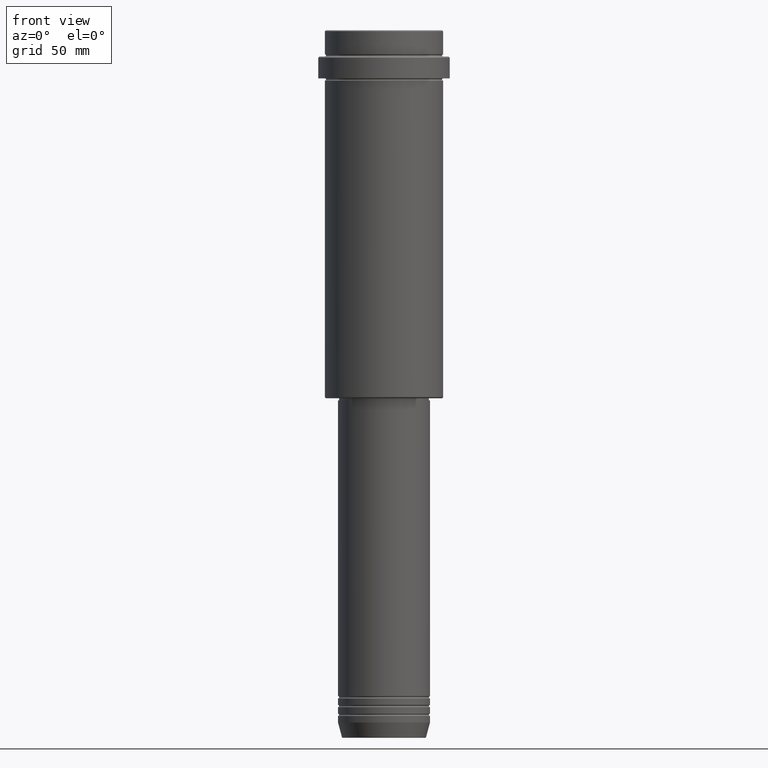
[diagram: clean part render]
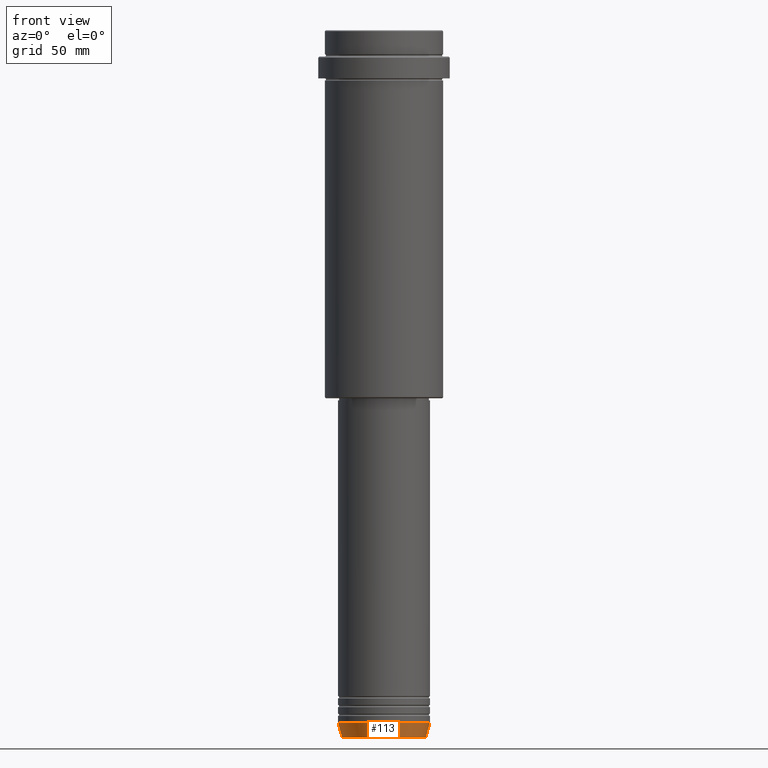
[diagram: same view with one face highlighted and labeled with its STEP entity id]
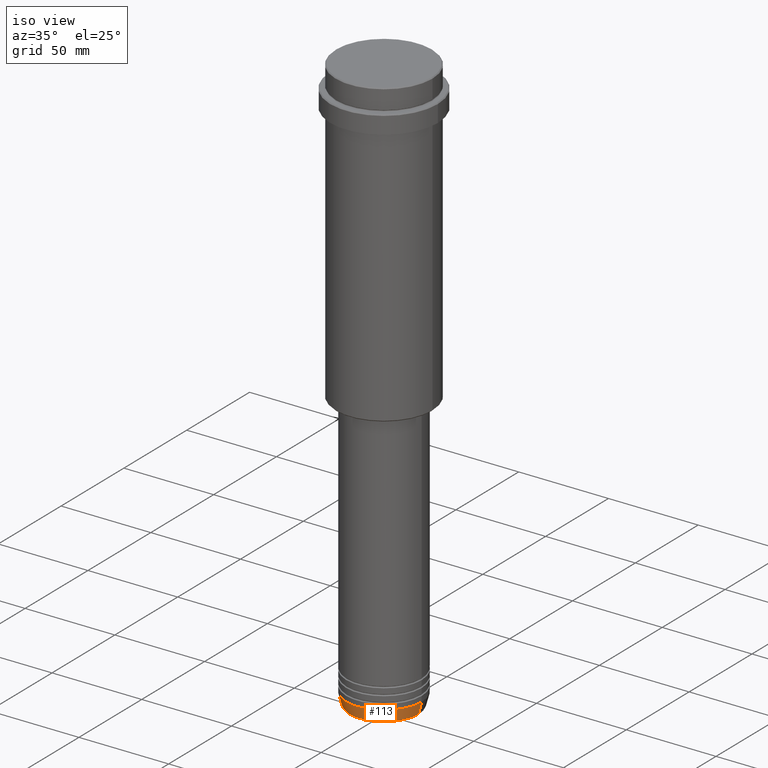
[diagram: same view with one face highlighted and labeled with its STEP entity id]
A machine part, front view. The second image highlights one B-rep face of the part: STEP entity #113.
A second angle (iso view) of the same face is appended — the face is thin or edge-on in the first view.
In plain terms, the highlighted conical surface has half-angle 15 deg.
Its self-contained STEP definition (entity closure, byte-faithful):
#31 = AXIS2_PLACEMENT_3D ( 'NONE', #296, #542, #1410 ) ;
#104 = FACE_OUTER_BOUND ( 'NONE', #1373, .T. ) ;
#113 = ADVANCED_FACE ( 'NONE', ( #104 ), #871, .T. ) ;
#174 = CARTESIAN_POINT ( 'NONE',  ( 0.000000000000000000, 0.000000000000000000, -316.0000000000000000 ) ) ;
#185 = DIRECTION ( 'NONE',  ( 1.000000000000000000, 0.000000000000000000, 0.000000000000000000 ) ) ;
#213 = CIRCLE ( 'NONE', #547, 21.00000000000000000 ) ;
#224 = EDGE_CURVE ( 'NONE', #1009, #486, #1159, .T. ) ;
#286 = ORIENTED_EDGE ( 'NONE', *, *, #224, .F. ) ;
#296 = CARTESIAN_POINT ( 'NONE',  ( 0.000000000000000000, 0.000000000000000000, -316.0000000000000000 ) ) ;
#355 = ORIENTED_EDGE ( 'NONE', *, *, #495, .F. ) ;
#375 = VECTOR ( 'NONE', #758, 1000.000000000000000 ) ;
#400 = LINE ( 'NONE', #1380, #858 ) ;
#434 = CARTESIAN_POINT ( 'NONE',  ( -19.22365507213719127, 2.462988521705001050E-15, -322.6294095225512706 ) ) ;
#480 = ORIENTED_EDGE ( 'NONE', *, *, #1004, .T. ) ;
#486 = VERTEX_POINT ( 'NONE', #1157 ) ;
#495 = EDGE_CURVE ( 'NONE', #486, #1054, #213, .T. ) ;
#533 = CARTESIAN_POINT ( 'NONE',  ( -21.00000000000000000, 2.571758278209441661E-15, -316.0000000000000000 ) ) ;
#537 = CARTESIAN_POINT ( 'NONE',  ( 0.000000000000000000, 0.000000000000000000, -322.6294095225512706 ) ) ;
#542 = DIRECTION ( 'NONE',  ( -0.000000000000000000, -0.000000000000000000, 1.000000000000000000 ) ) ;
#547 = AXIS2_PLACEMENT_3D ( 'NONE', #174, #617, #185 ) ;
#548 = AXIS2_PLACEMENT_3D ( 'NONE', #537, #690, #1342 ) ;
#555 = VERTEX_POINT ( 'NONE', #1007 ) ;
#617 = DIRECTION ( 'NONE',  ( -0.000000000000000000, -0.000000000000000000, 1.000000000000000000 ) ) ;
#690 = DIRECTION ( 'NONE',  ( -0.000000000000000000, -0.000000000000000000, 1.000000000000000000 ) ) ;
#758 = DIRECTION ( 'NONE',  ( -0.2588190451025213501, 3.169619151431772337E-17, 0.9659258262890680902 ) ) ;
#858 = VECTOR ( 'NONE', #967, 1000.000000000000000 ) ;
#871 = CONICAL_SURFACE ( 'NONE', #31, 21.00000000000000000, 0.2617993877991500740 ) ;
#943 = ORIENTED_EDGE ( 'NONE', *, *, #1048, .T. ) ;
#967 = DIRECTION ( 'NONE',  ( 0.2588190451025213501, 0.000000000000000000, 0.9659258262890680902 ) ) ;
#1004 = EDGE_CURVE ( 'NONE', #555, #1054, #400, .T. ) ;
#1007 = CARTESIAN_POINT ( 'NONE',  ( 19.22365507213719127, 0.000000000000000000, -322.6294095225512706 ) ) ;
#1009 = VERTEX_POINT ( 'NONE', #434 ) ;
#1048 = EDGE_CURVE ( 'NONE', #1009, #555, #1187, .T. ) ;
#1054 = VERTEX_POINT ( 'NONE', #1142 ) ;
#1142 = CARTESIAN_POINT ( 'NONE',  ( 21.00000000000000000, 0.000000000000000000, -316.0000000000000000 ) ) ;
#1157 = CARTESIAN_POINT ( 'NONE',  ( -21.00000000000000000, 2.571758278209441661E-15, -316.0000000000000000 ) ) ;
#1159 = LINE ( 'NONE', #533, #375 ) ;
#1187 = CIRCLE ( 'NONE', #548, 19.22365507213719127 ) ;
#1342 = DIRECTION ( 'NONE',  ( 1.000000000000000000, 0.000000000000000000, 0.000000000000000000 ) ) ;
#1373 = EDGE_LOOP ( 'NONE', ( #286, #943, #480, #355 ) ) ;
#1380 = CARTESIAN_POINT ( 'NONE',  ( 21.00000000000000000, 0.000000000000000000, -316.0000000000000000 ) ) ;
#1410 = DIRECTION ( 'NONE',  ( 1.000000000000000000, 0.000000000000000000, 0.000000000000000000 ) ) ;